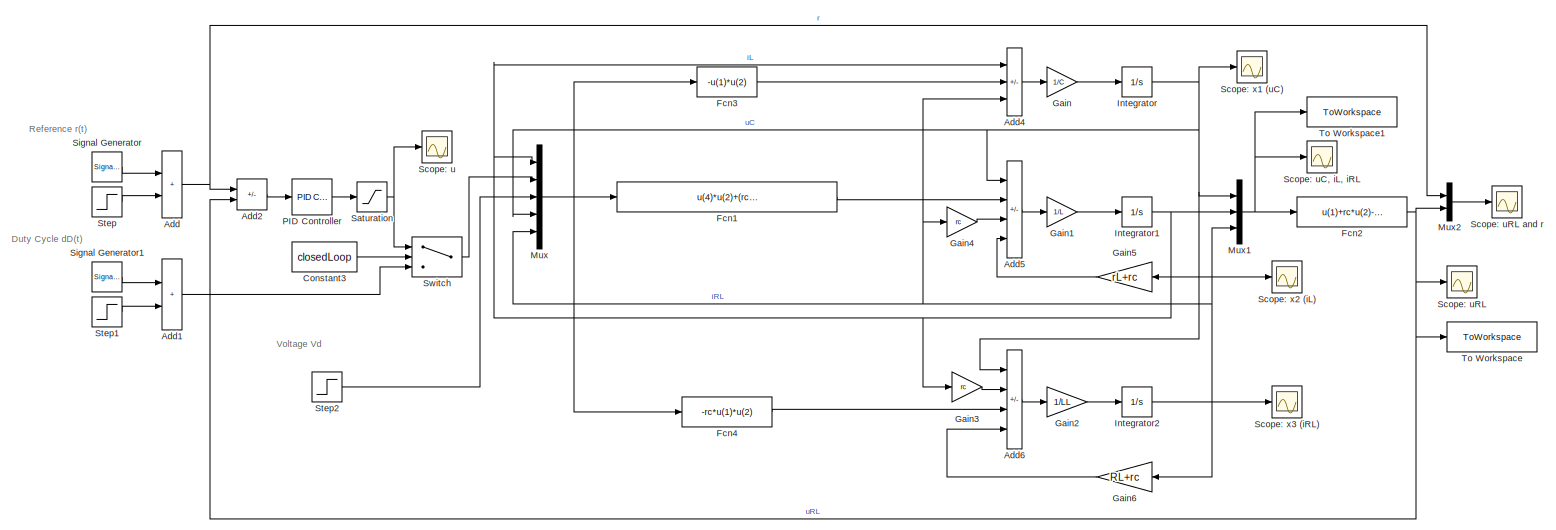
[diagram: root canvas - part 1/1, most of the canvas]
MODEL slx_1abf276a268e
KIND model
CONFIG AbsTol = auto
CONFIG EnableMultiTasking = on
CONFIG FixedStep = auto
CONFIG MaxStep = auto
CONFIG MinStep = auto
CONFIG RelTol = 1e-3
CONFIG SampleTimeConstraint = Unconstrained
CONFIG SolverName = ode45
CONFIG StartTime = 0.0
CONFIG StopTime = 0.1
BLOCK [Sum] Add
  IconShape = rectangular
BLOCK [Sum] Add1
  IconShape = rectangular
BLOCK [Sum] Add2
  IconShape = rectangular
  Inputs = +-
BLOCK [Sum] Add4
  IconShape = rectangular
  Inputs = +--
BLOCK [Sum] Add5
  IconShape = rectangular
  Inputs = -++-
BLOCK [Sum] Add6
  IconShape = rectangular
  Inputs = +++-
BLOCK [Constant] Constant3
  Value = closedLoop
BLOCK [Fcn] Fcn1
  Expr = u(4)*u(2)+(rc-rs)*u(1)*u(2)-rc*u(5)*u(2)+u(3)
BLOCK [Fcn] Fcn2
  Expr = u(1)+rc*u(2)-rc*u(3)
BLOCK [Fcn] Fcn3
  Expr = -u(1)*u(2)
BLOCK [Fcn] Fcn4
  Expr = -rc*u(1)*u(2)
BLOCK [Gain] Gain
  Gain = 1/C
BLOCK [Gain] Gain1
  Gain = 1/L
BLOCK [Gain] Gain2
  Gain = 1/LL
BLOCK [Gain] Gain3
  Gain = rc
BLOCK [Gain] Gain4
  Gain = rc
BLOCK [Gain] Gain5
  Gain = rL+rc
BLOCK [Gain] Gain6
  Gain = RL+rc
BLOCK [Integrator] Integrator
BLOCK [Integrator] Integrator1
BLOCK [Integrator] Integrator2
BLOCK [Mux] Mux
  DisplayOption = bar
  Inputs = 5
BLOCK [Mux] Mux1
  DisplayOption = bar
  Inputs = 3
BLOCK [Mux] Mux2
  DisplayOption = bar
  Inputs = 2
BLOCK [Reference] PID Controller  REF=slpidlib/PID Controller
  SourceBlock = slpidlib/PID Controller
  SourceType = PID 1dof
BLOCK [Saturate] Saturation
  LowerLimit = 0
  UpperLimit = 1
BLOCK [Scope] Scope: u
  Floating = off
  NumInputPorts = 1
  ScopeSpecificationString = Simulink.scopes.TimeScopeBlockCfg('CurrentConfiguration', extmgr.ConfigurationSet(extmgr.Configuration('Core','General UI',true),extmgr.Configuration('Core','Source UI',true),extmgr.Configuration('Sources','WiredSimulink',true,'DataLoggingVariableName','ScopeData7','DataLoggingSaveFormat','Array','DataLoggingDecimation','1','DataLoggingDecimateData',true),extmgr.Configuration('Visuals','Time Domai...<+1662ch>
BLOCK [Scope] Scope: uC, iL, iRL
  Floating = off
  NumInputPorts = 1
  ScopeSpecificationString = Simulink.scopes.TimeScopeBlockCfg('CurrentConfiguration', extmgr.ConfigurationSet(extmgr.Configuration('Core','General UI',true),extmgr.Configuration('Core','Source UI',true),extmgr.Configuration('Sources','WiredSimulink',true,'DataLoggingVariableName','ScopeData1','DataLoggingSaveFormat','Array','DataLoggingDecimation','1','DataLoggingDecimateData',true),extmgr.Configuration('Visuals','Time Domai...<+2082ch>
BLOCK [Scope] Scope: uRL
  Floating = off
  NumInputPorts = 1
  ScopeSpecificationString = Simulink.scopes.TimeScopeBlockCfg('CurrentConfiguration', extmgr.ConfigurationSet(extmgr.Configuration('Core','General UI',true),extmgr.Configuration('Core','Source UI',true),extmgr.Configuration('Sources','WiredSimulink',true,'DataLoggingVariableName','ScopeData1','DataLoggingSaveFormat','Array','DataLoggingDecimation','1','DataLoggingDecimateData',true),extmgr.Configuration('Visuals','Time Domai...<+1665ch>
BLOCK [Scope] Scope: uRL and r
  Floating = off
  NumInputPorts = 1
  ScopeSpecificationString = Simulink.scopes.TimeScopeBlockCfg('CurrentConfiguration', extmgr.ConfigurationSet(extmgr.Configuration('Core','General UI',true),extmgr.Configuration('Core','Source UI',true),extmgr.Configuration('Sources','WiredSimulink',true,'DataLoggingVariableName','ScopeData8','DataLoggingSaveFormat','Array','DataLoggingDecimation','1','DataLoggingDecimateData',true),extmgr.Configuration('Visuals','Time Domai...<+1892ch>
BLOCK [Scope] Scope: x1 (uC)
  Floating = off
  NumInputPorts = 1
  ScopeSpecificationString = Simulink.scopes.TimeScopeBlockCfg('CurrentConfiguration', extmgr.ConfigurationSet(extmgr.Configuration('Core','General UI',true),extmgr.Configuration('Core','Source UI',true),extmgr.Configuration('Sources','WiredSimulink',true,'DataLoggingSaveFormat','Array','DataLoggingDecimation','1','DataLoggingDecimateData',true),extmgr.Configuration('Visuals','Time Domain',true,'DisplayPropertyDefaults',struc...<+826ch>
BLOCK [Scope] Scope: x2 (iL)
  Floating = off
  NumInputPorts = 1
  ScopeSpecificationString = C++SS(StrPVP('Location','[188, 365, 512, 604]'),StrPVP('Open','off'),StrPVP('ZoomMode','yonly'),MxPVP('AxesTitles',54,'struct(''axes1'',''%<SignalLabel>'')'),MxPVP('ScopeGraphics',57,'struct(''FigureColor'',''[0.5 0.5 0.5]'',''AxesColor'',''[0 0 0]'',''AxesTickColor'',''[1 1 1]'',''LineColors'',''[1 1 0;1 0 1;0 1 1;1 0 0;0 1 0;0 0 1]'',''LineStyles'',''-|-|-|-|-|-'',''LineWidths'',''[0.5 0.5 0.5 0...<+224ch>
BLOCK [Scope] Scope: x3 (iRL)
  Floating = off
  NumInputPorts = 1
  ScopeSpecificationString = Simulink.scopes.TimeScopeBlockCfg('CurrentConfiguration', extmgr.ConfigurationSet(extmgr.Configuration('Core','General UI',true),extmgr.Configuration('Core','Source UI',true),extmgr.Configuration('Sources','WiredSimulink',true,'DataLoggingVariableName','ScopeData10','DataLoggingSaveFormat','Array','DataLoggingDecimation','1','DataLoggingDecimateData',true),extmgr.Configuration('Visuals','Time Doma...<+866ch>
BLOCK [SignalGenerator] Signal Generator
  Amplitude = -r_delta
  Frequency = omega
  Units = rad/sec
  WaveForm = square
BLOCK [SignalGenerator] Signal Generator1
  Amplitude = -dD_delta
  Frequency = omega_chav
  Units = rad/sec
  WaveForm = square
BLOCK [Step] Step
  After = r_med
  SampleTime = 0
  Time = 0
BLOCK [Step] Step1
  After = dD_med
  SampleTime = 0
  Time = 0
BLOCK [Step] Step2
  After = 10
  SampleTime = 0
  Time = 0
BLOCK [Switch] Switch
  Criteria = u2 > Threshold
  InputSameDT = off
  SaturateOnIntegerOverflow = off
BLOCK [ToWorkspace] To Workspace
  FixptAsFi = on
  MaxDataPoints = inf
  SampleTime = -1
  SaveFormat = Timeseries
  VariableName = out_uRL
BLOCK [ToWorkspace] To Workspace1
  FixptAsFi = on
  MaxDataPoints = inf
  SampleTime = -1
  SaveFormat = Timeseries
  VariableName = out_uC_iL_iRL
ANNOTATION (root): Duty Cycle dD(t)
ANNOTATION (root): Reference r(t)
ANNOTATION (root): Voltage Vd
LINE Add1:1 -> Switch:3
LINE Add2:1 -> PID Controller:1
LINE Add4:1 -> Gain:1
LINE Add5:1 -> Gain1:1
LINE Add6:1 -> Gain2:1
NET Add:1 -> Add2:1, Mux2:1
LINE Constant3:1 -> Switch:2
LINE Fcn1:1 -> Add5:2
NET Fcn2:1 -> Add2:2, Mux2:2, Scope: uRL:1, To Workspace:1
LINE Fcn3:1 -> Add4:2
LINE Fcn4:1 -> Add6:3
LINE Gain1:1 -> Integrator1:1
LINE Gain2:1 -> Integrator2:1
LINE Gain3:1 -> Add6:2
LINE Gain4:1 -> Add5:3
LINE Gain5:1 -> Add5:4
LINE Gain6:1 -> Add6:4
LINE Gain:1 -> Integrator:1
NET Integrator1:1 -> Add4:1, Gain3:1, Gain5:1, Mux1:2, Mux:1, Scope: x2 (iL):1
NET Integrator2:1 -> Add4:3, Gain4:1, Gain6:1, Mux1:3, Mux:5, Scope: x3 (iRL):1
NET Integrator:1 -> Add5:1, Add6:1, Mux1:1, Mux:4, Scope: x1 (uC):1
NET Mux1:1 -> Fcn2:1, Scope: uC, iL, iRL:1, To Workspace1:1
LINE Mux2:1 -> Scope: uRL and r:1
NET Mux:1 -> Fcn1:1, Fcn3:1, Fcn4:1
LINE PID Controller:1 -> Saturation:1
NET Saturation:1 -> Scope: u:1, Switch:1
LINE Signal Generator1:1 -> Add1:1
LINE Signal Generator:1 -> Add:1
LINE Step1:1 -> Add1:2
LINE Step2:1 -> Mux:3
LINE Step:1 -> Add:2
LINE Switch:1 -> Mux:2
note: NET lines group one-source signal fan-out (src -> all destinations, sorted); 1:1 wires keep LINE
